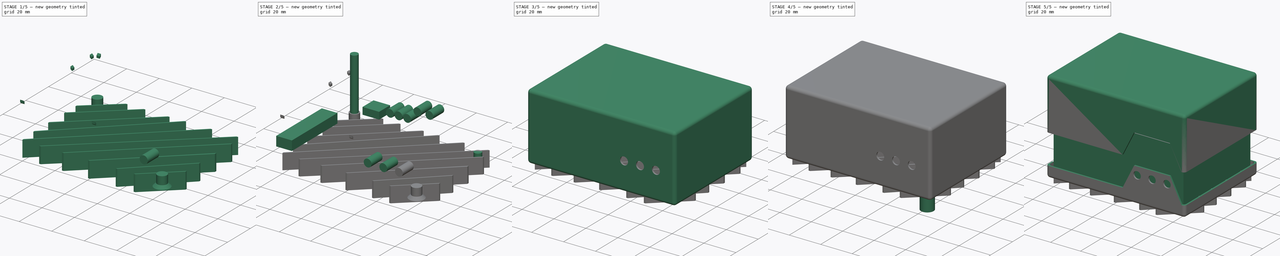
[diagram: build sequence overview — one tinted view per stage of 5, left to right]
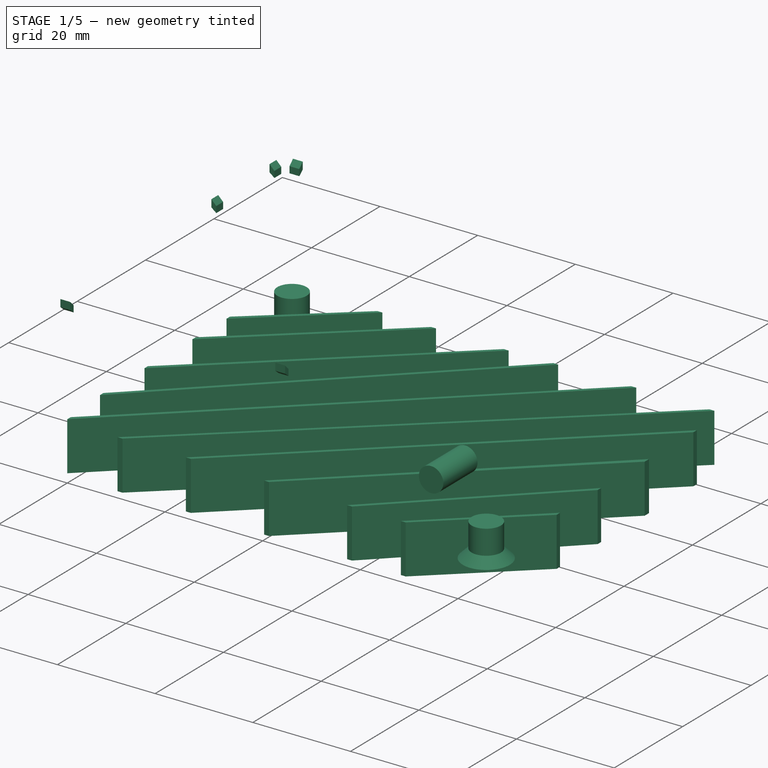
[diagram: stage 1 of 5 — iso view after this stage's code; geometry added in this stage tinted green]
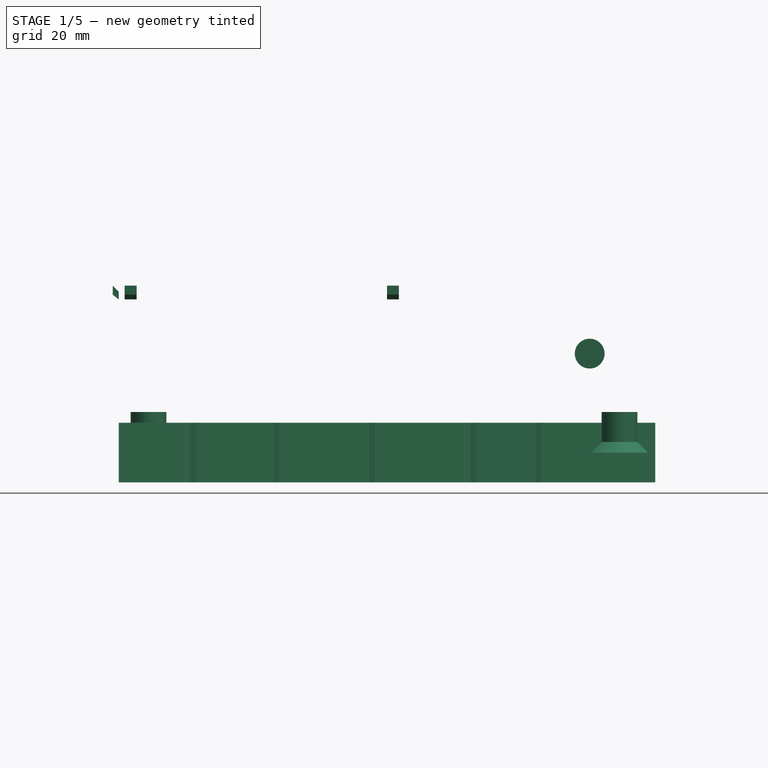
[diagram: stage 1 of 5 — front view after this stage's code; geometry added in this stage tinted green]
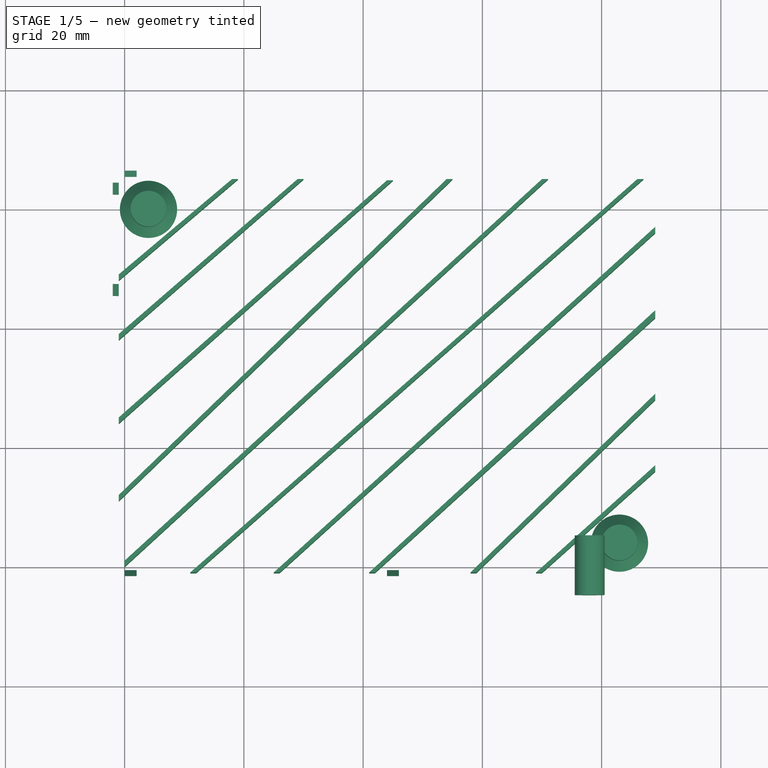
[diagram: stage 1 of 5 — top view after this stage's code; geometry added in this stage tinted green]
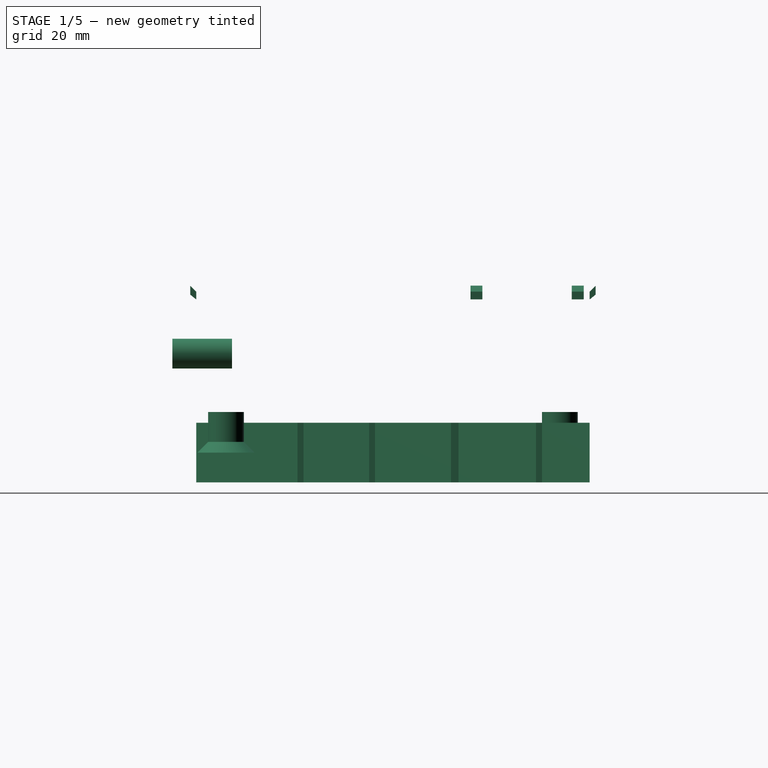
[diagram: stage 1 of 5 — right view after this stage's code; geometry added in this stage tinted green]
FCSTD DOCUMENT  (FreeCAD 0.14R3700 (Git))
Label: housing
License: CC-BY 3.0
LicenseURL: http://creativecommons.org/licenses/by/3.0/
objects: Part::Cylinder×20, Part::MultiFuse×11, Part::Cut×9, Part::Box×8, Part::FeaturePython×5, PartDesign::Fillet×4, Sketcher::SketchObject×4, PartDesign::Pad×4, Part::Cone×4, Part::MultiCommon×1
note: 74 computed .brp shape members not serialized (recipe doc carries the construction recipe); baked Part::Feature solids carry a one-line shape summary decoded from their .brp

FEATURE [Part::Cylinder] Cylinder011
  Angle = 360
  Height = 10
  Placement = pos=(78,5,16.6) rot=(1,0,0;1.5708rad)
  Radius = 2.5
FEATURE [Part::Cone] Cone002
  Angle = 360
  Height = 2.5
  Placement = pos=(4,60,0) rot=(0,0,1;0rad)
  Radius1 = 4.8
  Radius2 = 2.3
FEATURE [Part::Cone] Cone003
  Angle = 360
  Height = 2.5
  Placement = pos=(83,4,0) rot=(0,0,1;0rad)
  Radius1 = 4.8
  Radius2 = 2.3
FEATURE [Part::Cylinder] Cylinder018
  Angle = 360
  Height = 6.8
  Placement = pos=(4,60,0) rot=(0,0,1;0rad)
  Radius = 3
FEATURE [Part::Cylinder] Cylinder019
  Angle = 360
  Height = 6.8
  Placement = pos=(83,4,0) rot=(0,0,1;0rad)
  Radius = 3
FEATURE [Part::MultiFuse] Fusion010
  Shapes = -> [Cylinder018,Cylinder019]
FEATURE [Sketcher::SketchObject] Sketch002
  Placement = pos=(0,2,0) rot=(1,0,0;1.5708rad)
  sketch-geometry (4):
    g0: LineSegment StartX=-2 StartY=28 StartZ=0 EndX=-2 EndY=26.4916 EndZ=0
    g1: LineSegment StartX=-2 StartY=26.4916 StartZ=0 EndX=-1 EndY=25.687 EndZ=0
    g2: LineSegment StartX=-1 StartY=25.687 StartZ=0 EndX=-1 EndY=27 EndZ=0
    g3: LineSegment StartX=-1 StartY=27 StartZ=0 EndX=-2 EndY=28 EndZ=0
  constraints (4):
    c: Coincident(g0,g1)
    c: Coincident(g1,g2)
    c: Coincident(g2,g3)
    c: Coincident(g3,g0)
FEATURE [PartDesign::Pad] Pad002
  Length = 2
  Length2 = 100
  Placement = pos=(0,2,0) rot=(1,0,0;1.5708rad)
  Sketch = -> Sketch002
  Type = 0
FEATURE [Part::FeaturePython] Clone  label="Clone of Pad002"  # Draft clone (typed FeaturePython)
  Objects = -> [Pad002]
  Placement = pos=(0,47,0) rot=(1,0,0;1.5708rad)
  Scale = (1,1,1)
FEATURE [Part::FeaturePython] Clone001  label="Clone of Pad003"  # Draft clone (typed FeaturePython)
  Objects = -> [Pad002]
  Placement = pos=(0,64,0) rot=(1,0,0;1.5708rad)
  Scale = (1,1,1)
FEATURE [Part::FeaturePython] Clone002  label="Clone of Pad004"  # Draft clone (typed FeaturePython)
  Objects = -> [Pad002]
  Placement = pos=(0,0,0) rot=(0.57735,0.57735,0.57735;2.0944rad)
  Scale = (1,1,1)
FEATURE [Part::FeaturePython] Clone003  label="Clone of Pad005"  # Draft clone (typed FeaturePython)
  Objects = -> [Pad002]
  Placement = pos=(44,0,0) rot=(0.57735,0.57735,0.57735;2.0944rad)
  Scale = (1,1,1)
FEATURE [Part::FeaturePython] Clone004  label="Clone of Pad006"  # Draft clone (typed FeaturePython)
  Objects = -> [Pad002]
  Placement = pos=(2,64,0) rot=(0.57735,-0.57735,-0.57735;2.0944rad)
  Scale = (1,1,1)
FEATURE [Sketcher::SketchObject] Sketch003
  Placement = pos=(0,0,-5) rot=(0,0,1;0rad)
  sketch-geometry (40):
    g0: LineSegment StartX=-1 StartY=49 StartZ=0 EndX=18 EndY=65 EndZ=0
    g1: LineSegment StartX=18 StartY=65 StartZ=0 EndX=19 EndY=65 EndZ=0
    g2: LineSegment StartX=19 StartY=65 StartZ=0 EndX=-1 EndY=48 EndZ=0
    g3: LineSegment StartX=-1 StartY=48 StartZ=0 EndX=-1 EndY=49 EndZ=0
    g4: LineSegment StartX=-1 StartY=39 StartZ=0 EndX=29 EndY=65 EndZ=0
    g5: LineSegment StartX=29 StartY=65 StartZ=0 EndX=30 EndY=65 EndZ=0
    g6: LineSegment StartX=30 StartY=65 StartZ=0 EndX=-1 EndY=38 EndZ=0
    g7: LineSegment StartX=-1 StartY=38 StartZ=0 EndX=-1 EndY=39 EndZ=0
    g8: LineSegment StartX=44 StartY=64.7956 StartZ=0 EndX=-1 EndY=25 EndZ=0
    g9: LineSegment StartX=-1 StartY=25 StartZ=0 EndX=-1 EndY=24 EndZ=0
    g10: LineSegment StartX=-1 StartY=24 StartZ=0 EndX=45 EndY=64.7956 EndZ=0
    g11: LineSegment StartX=45 StartY=64.7956 StartZ=0 EndX=44 EndY=64.7956 EndZ=0
    g12: LineSegment StartX=54 StartY=65 StartZ=0 EndX=-1 EndY=12 EndZ=0
    g13: LineSegment StartX=-1 StartY=12 StartZ=0 EndX=-1 EndY=11 EndZ=0
    g14: LineSegment StartX=-1 StartY=11 StartZ=0 EndX=55 EndY=65 EndZ=0
    g15: LineSegment StartX=55 StartY=65 StartZ=0 EndX=54 EndY=65 EndZ=0
    g16: LineSegment StartX=70 StartY=65 StartZ=0 EndX=0 EndY=1 EndZ=0
    g17: LineSegment StartX=0 StartY=1 StartZ=0 EndX=0 EndY=0 EndZ=0
    g18: LineSegment StartX=0 StartY=0 StartZ=0 EndX=71 EndY=65 EndZ=0
    g19: LineSegment StartX=71 StartY=65 StartZ=0 EndX=70 EndY=65 EndZ=0
    g20: LineSegment StartX=12 StartY=-1 StartZ=0 EndX=11 EndY=-1 EndZ=0
    g21: LineSegment StartX=11 StartY=-1 StartZ=0 EndX=86 EndY=65 EndZ=0
    g22: LineSegment StartX=86 StartY=65 StartZ=0 EndX=87 EndY=65 EndZ=0
    g23: LineSegment StartX=87 StartY=65 StartZ=0 EndX=12 EndY=-1 EndZ=0
    g24: LineSegment StartX=25 StartY=-1 StartZ=0 EndX=89 EndY=57 EndZ=0
    g25: LineSegment StartX=89 StartY=57 StartZ=0 EndX=89 EndY=56 EndZ=0
    g26: LineSegment StartX=89 StartY=56 StartZ=0 EndX=26 EndY=-1 EndZ=0
    g27: LineSegment StartX=26 StartY=-1 StartZ=0 EndX=25 EndY=-1 EndZ=0
    g28: LineSegment StartX=41 StartY=-1 StartZ=0 EndX=89 EndY=43 EndZ=0
    g29: LineSegment StartX=89 StartY=43 StartZ=0 EndX=89 EndY=41.7464 EndZ=0
    g30: LineSegment StartX=89 StartY=41.7464 StartZ=0 EndX=42 EndY=-1 EndZ=0
    g31: LineSegment StartX=42 StartY=-1 StartZ=0 EndX=41 EndY=-1 EndZ=0
    g32: LineSegment StartX=58 StartY=-1 StartZ=0 EndX=59 EndY=-1 EndZ=0
    g33: LineSegment StartX=59 StartY=-1 StartZ=0 EndX=89 EndY=28 EndZ=0
    g34: LineSegment StartX=89 StartY=28 StartZ=0 EndX=89 EndY=29 EndZ=0
    g35: LineSegment StartX=89 StartY=29 StartZ=0 EndX=58 EndY=-1 EndZ=0
    g36: LineSegment StartX=69 StartY=-1 StartZ=0 EndX=70 EndY=-1 EndZ=0
    g37: LineSegment StartX=70 StartY=-1 StartZ=0 EndX=89 EndY=16 EndZ=0
    g38: LineSegment StartX=89 StartY=16 StartZ=0 EndX=89 EndY=17 EndZ=0
    g39: LineSegment StartX=89 StartY=17 StartZ=0 EndX=69 EndY=-1 EndZ=0
  constraints (40):
    c: Coincident(g0,g1)
    c: Coincident(g1,g2)
    c: Coincident(g2,g3)
    c: Coincident(g3,g0)
    c: Coincident(g4,g5)
    c: Coincident(g5,g6)
    c: Coincident(g6,g7)
    c: Coincident(g7,g4)
    c: Coincident(g8,g9)
    c: Coincident(g9,g10)
    c: Coincident(g10,g11)
    c: Coincident(g8,g11)
    c: Coincident(g12,g13)
    c: Coincident(g13,g14)
    c: Coincident(g14,g15)
    c: Coincident(g12,g15)
    c: Coincident(g16,g17)
    c: Coincident(g17,g18)
    c: Coincident(g18,g19)
    c: Coincident(g19,g16)
    c: Coincident(g20,g21)
    c: Coincident(g21,g22)
    c: Coincident(g22,g23)
    c: Coincident(g20,g23)
    c: Coincident(g24,g25)
    c: Coincident(g25,g26)
    c: Coincident(g26,g27)
    c: Coincident(g27,g24)
    c: Coincident(g28,g29)
    c: Coincident(g29,g30)
    c: Coincident(g30,g31)
    c: Coincident(g31,g28)
    c: Coincident(g32,g33)
    c: Coincident(g33,g34)
    c: Coincident(g34,g35)
    c: Coincident(g35,g32)
    c: Coincident(g36,g37)
    c: Coincident(g37,g38)
    c: Coincident(g38,g39)
    c: Coincident(g39,g36)
FEATURE [PartDesign::Pad] Pad003
  Length = 10
  Length2 = 100
  Placement = pos=(0,0,-5) rot=(0,0,1;0rad)
  Sketch = -> Sketch003
  Type = 0
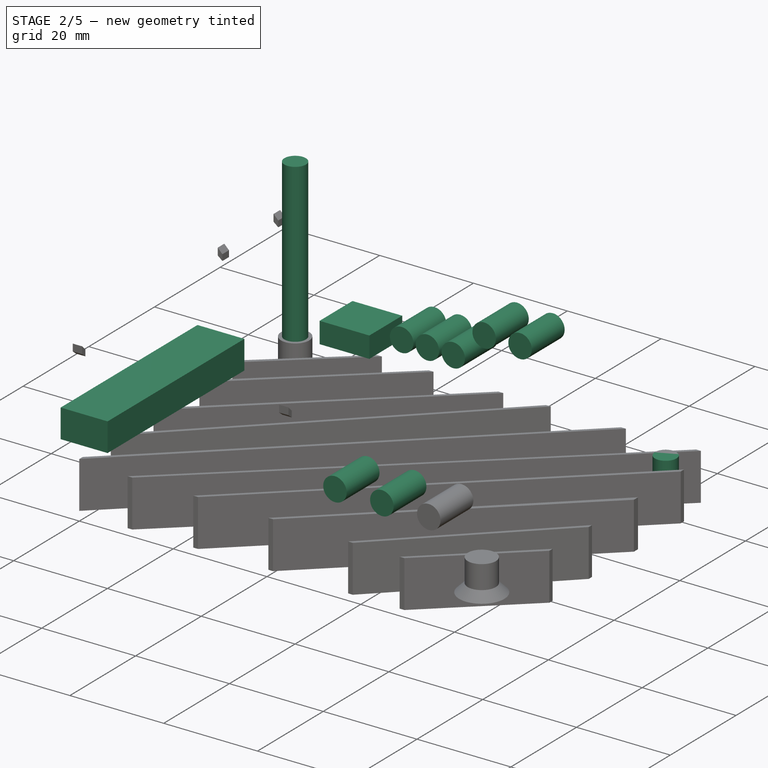
[diagram: stage 2 of 5 — iso view after this stage's code; geometry added in this stage tinted green]
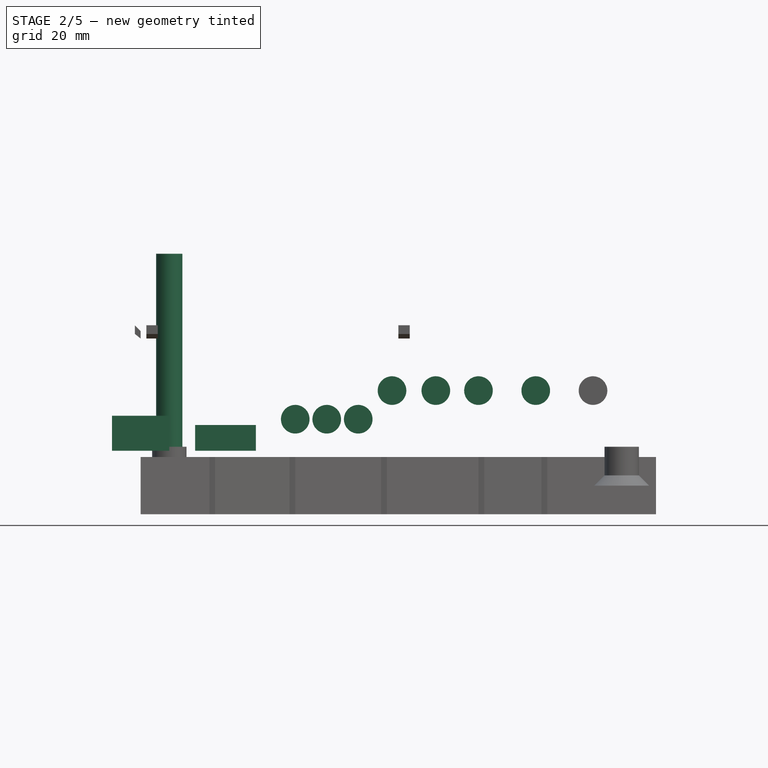
[diagram: stage 2 of 5 — front view after this stage's code; geometry added in this stage tinted green]
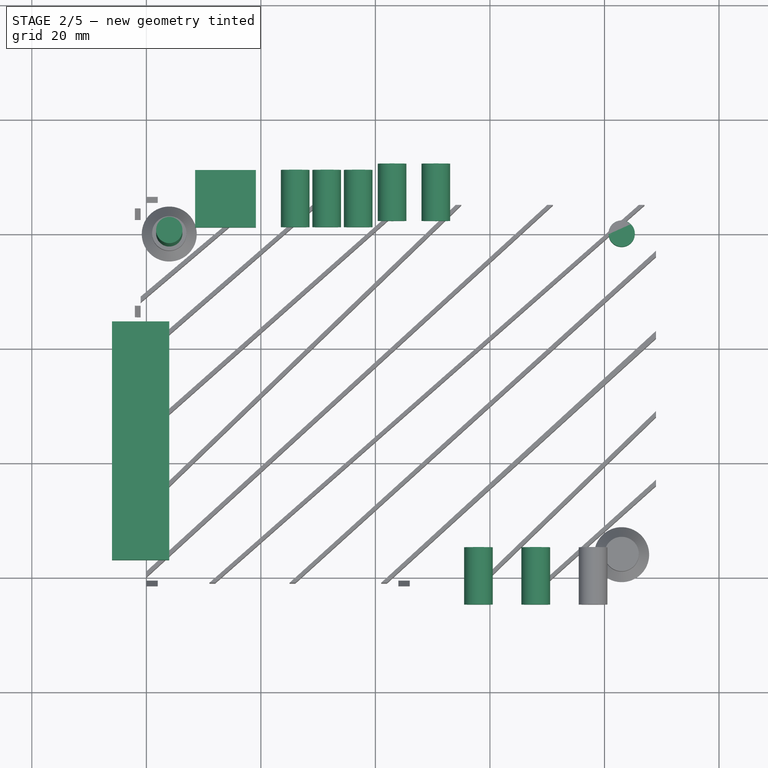
[diagram: stage 2 of 5 — top view after this stage's code; geometry added in this stage tinted green]
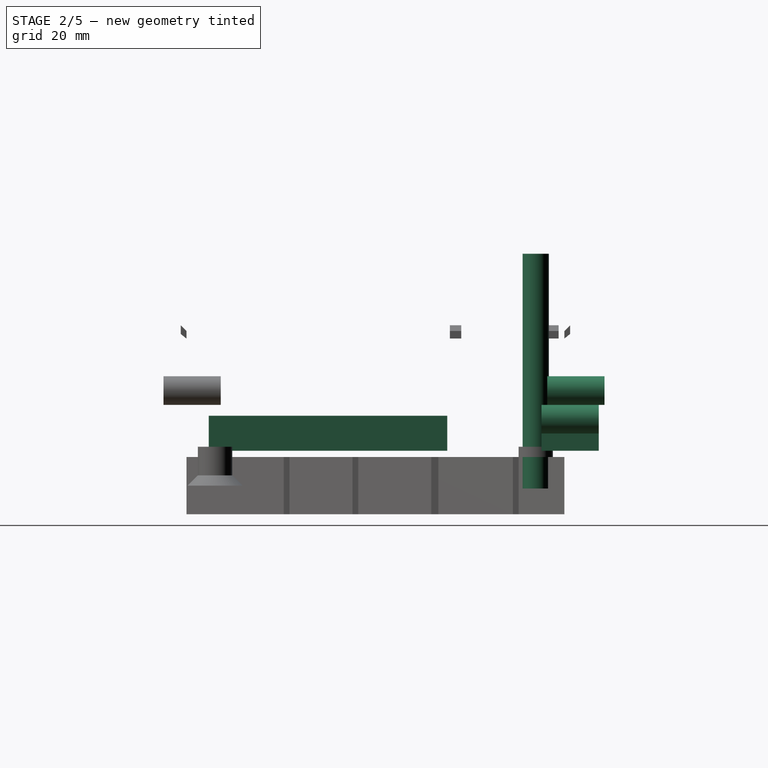
[diagram: stage 2 of 5 — right view after this stage's code; geometry added in this stage tinted green]
FEATURE [Part::Cylinder] Cylinder002
  Angle = 360
  Height = 5.5
  Placement = pos=(83,60,-0.5) rot=(0,0,1;0rad)
  Radius = 2.3
FEATURE [Part::Cylinder] Cylinder003
  Angle = 360
  Height = 41
  Placement = pos=(4,60,-0.5) rot=(0,0,1;0rad)
  Radius = 2.3
FEATURE [Part::Box] Box003  label="side-pin-array-cutout"
  Height = 6.1
  Length = 10
  Placement = pos=(-6,2.9,6.1) rot=(0,0,1;0rad)
  Width = 41.64
FEATURE [Part::Box] Box004  label="usb-cutout"
  Height = 4.5
  Length = 10.6
  Placement = pos=(8.52,61,6.1) rot=(0,0,1;0rad)
  Width = 10
FEATURE [Part::Cylinder] Cylinder004
  Angle = 360
  Height = 10
  Placement = pos=(26,71,11.6) rot=(1,0,0;1.5708rad)
  Radius = 2.5
FEATURE [Part::Cylinder] Cylinder005
  Angle = 360
  Height = 10
  Placement = pos=(31.5,71,11.6) rot=(1,0,0;1.5708rad)
  Radius = 2.5
FEATURE [Part::Cylinder] Cylinder006
  Angle = 360
  Height = 10
  Placement = pos=(37,71,11.6) rot=(1,0,0;1.5708rad)
  Radius = 2.5
FEATURE [Part::MultiFuse] Fusion001  label="leds-cutout"
  Shapes = -> [Cylinder004,Cylinder005,Cylinder006]
FEATURE [Part::Cylinder] Cylinder007
  Angle = 360
  Height = 10
  Placement = pos=(42.9,72,16.6) rot=(1,0,0;1.5708rad)
  Radius = 2.5
FEATURE [Part::Cylinder] Cylinder008
  Angle = 360
  Height = 10
  Placement = pos=(50.55,72,16.6) rot=(1,0,0;1.5708rad)
  Radius = 2.5
FEATURE [Part::Cylinder] Cylinder009
  Angle = 360
  Height = 10
  Placement = pos=(58,5,16.6) rot=(1,0,0;1.5708rad)
  Radius = 2.5
FEATURE [Part::Cylinder] Cylinder010
  Angle = 360
  Height = 10
  Placement = pos=(68,5,16.6) rot=(1,0,0;1.5708rad)
  Radius = 2.5
FEATURE [Part::MultiFuse] Fusion002
  Shapes = -> [Cylinder007,Cylinder011,Cylinder009,Cylinder010,Cylinder008]
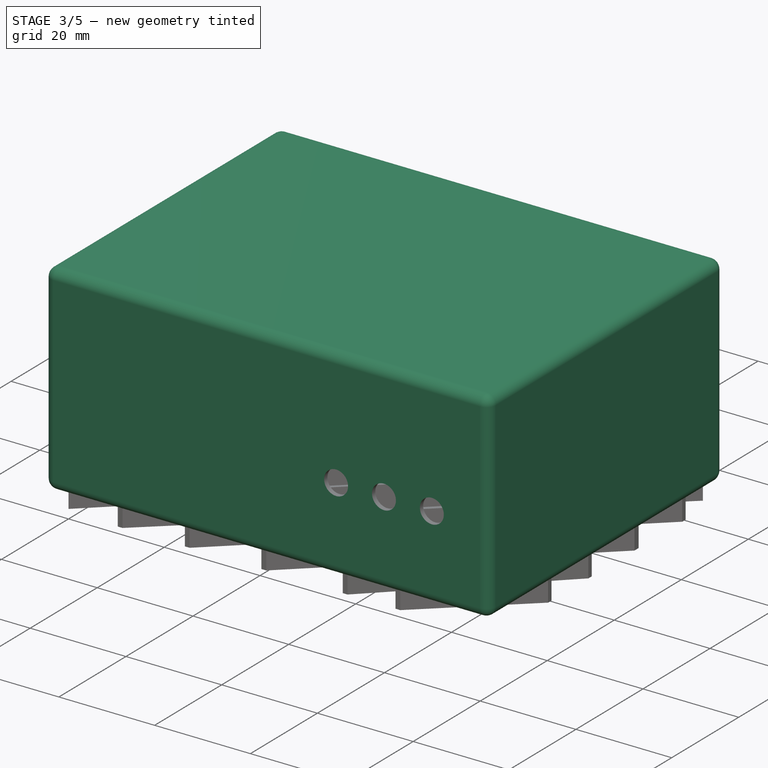
[diagram: stage 3 of 5 — iso view after this stage's code; geometry added in this stage tinted green]
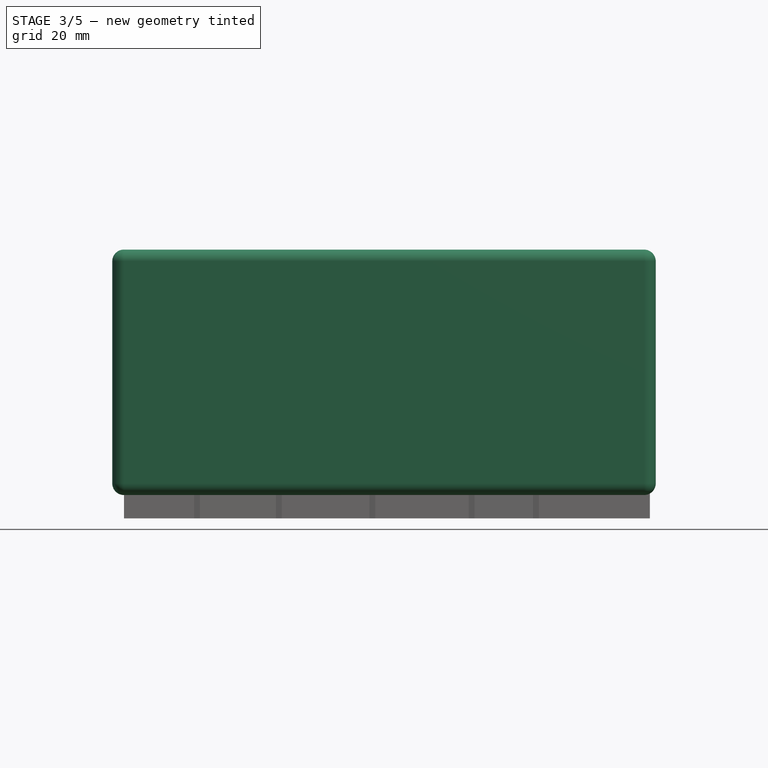
[diagram: stage 3 of 5 — front view after this stage's code; geometry added in this stage tinted green]
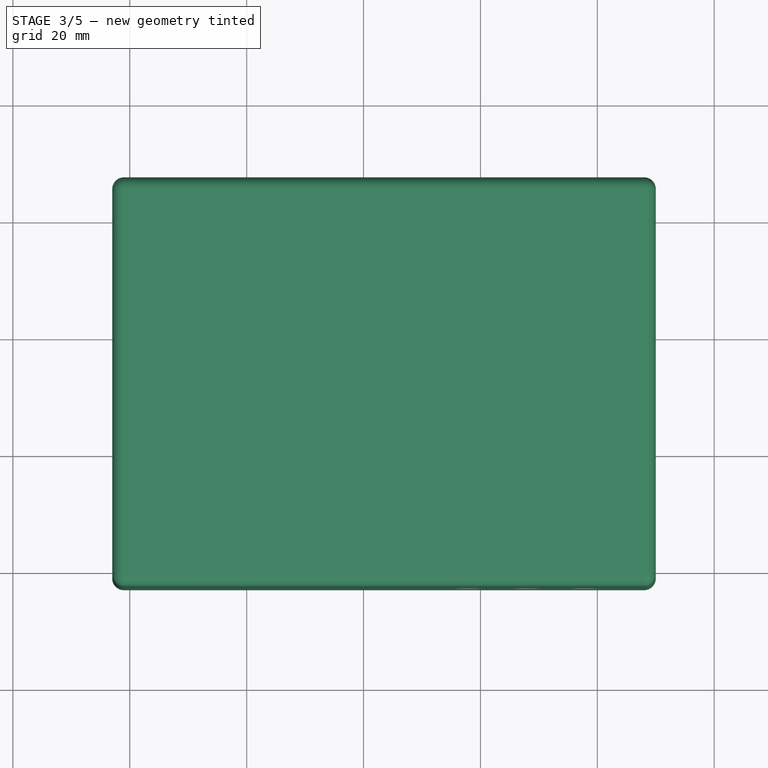
[diagram: stage 3 of 5 — top view after this stage's code; geometry added in this stage tinted green]
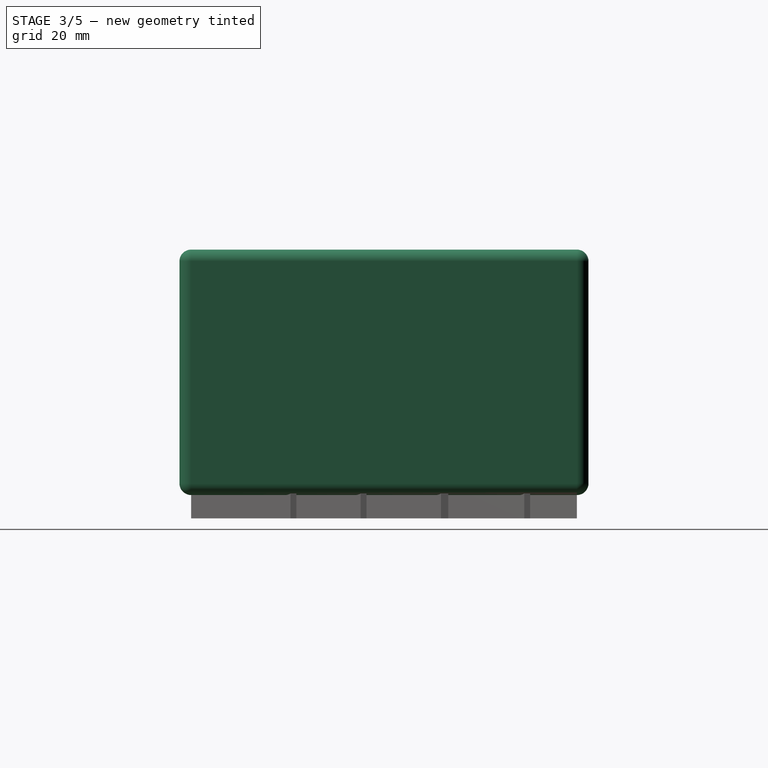
[diagram: stage 3 of 5 — right view after this stage's code; geometry added in this stage tinted green]
FEATURE [Part::Box] Box001  label="inner-box-cutout"
  Height = 40
  Length = 91
  Placement = pos=(-2,-2,0) rot=(0,0,1;0rad)
  Width = 68
FEATURE [PartDesign::Fillet] Fillet
  Base = -> Box001 [Edge5,Edge1,Edge7,Edge3]
  Placement = pos=(-2,-2,0) rot=(0,0,1;0rad)
  Radius = 2
FEATURE [PartDesign::Fillet] Fillet001  label="inner-cutout"
  Base = -> Fillet [Edge4,Edge12,Edge14,Edge16,Edge17,Edge18,Edge19,Edge20]
  Placement = pos=(-2,-2,0) rot=(0,0,1;0rad)
  Radius = 2
FEATURE [Part::Box] Box002  label="outer-housing"
  Height = 42
  Length = 93
  Placement = pos=(-3,-3,-1) rot=(0,0,1;0rad)
  Width = 70
FEATURE [PartDesign::Fillet] Fillet002  label="outer-shape"
  Base = -> Box002 [Edge9,Edge12,Edge6,Edge7,Edge8,Edge5,Edge10,Edge1,Edge2,Edge3,Edge4,Edge11]
  Placement = pos=(-3,-3,-1) rot=(0,0,1;0rad)
  Radius = 2
FEATURE [PartDesign::Fillet] Fillet003  label="inner-cutout001"
  Base = -> Fillet001 [Edge3,Edge6,Edge11,Edge12,Edge13,Edge14,Edge15,Edge16]
  Placement = pos=(-2,-2,0) rot=(0,0,1;0rad)
  Radius = 2
FEATURE [Part::Cut] Cut  label="walls"
  Base = -> Fillet002
  Tool = -> Fillet003
FEATURE [Part::Cylinder] Cylinder
  Angle = 360
  Height = 5.5
  Placement = pos=(4,4.5,-0.5) rot=(0,0,1;0rad)
  Radius = 2.3
FEATURE [Part::Cylinder] Cylinder001
  Angle = 360
  Height = 41
  Placement = pos=(83,4,-0.5) rot=(0,0,1;0rad)
  Radius = 2.3
FEATURE [Part::MultiFuse] Fusion  label="housing-one-piece"
  Shapes = -> [Cut,Cylinder,Cylinder002,Cylinder003,Cylinder001]
FEATURE [Part::Cut] Cut001  label="housing-with-side-hole"
  Base = -> Fusion
  Tool = -> Box003
FEATURE [Part::Cut] Cut002  label="case-with-usb-hole"
  Base = -> Cut001
  Tool = -> Box004
FEATURE [Part::Cut] Cut003  label="case-with-led-holes"
  Base = -> Cut002
  Tool = -> Fusion001
FEATURE [Part::Cut] Cut004  label="case-with-pin-term-holes"
  Base = -> Cut003
  Tool = -> Fusion002
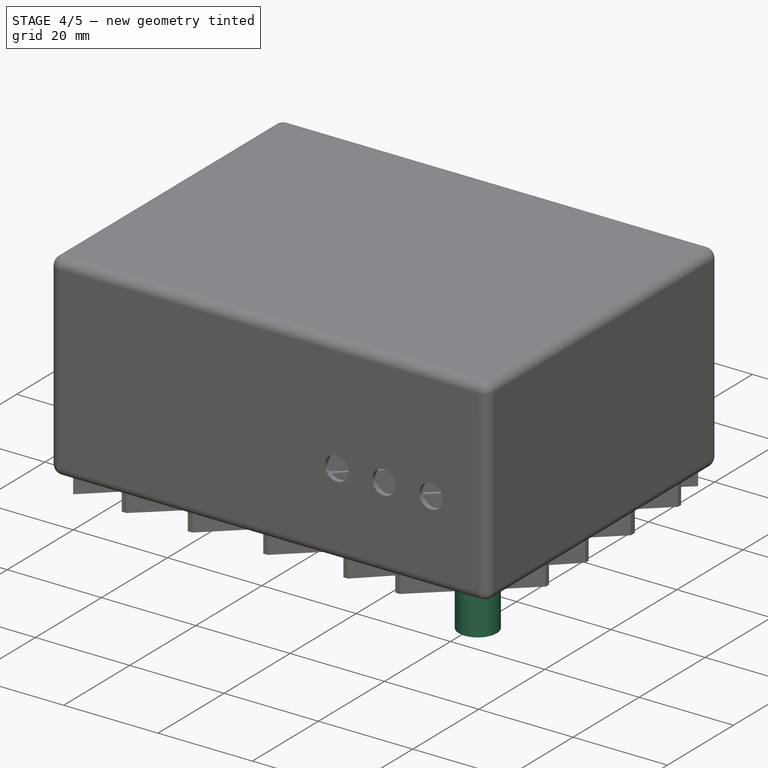
[diagram: stage 4 of 5 — iso view after this stage's code; geometry added in this stage tinted green]
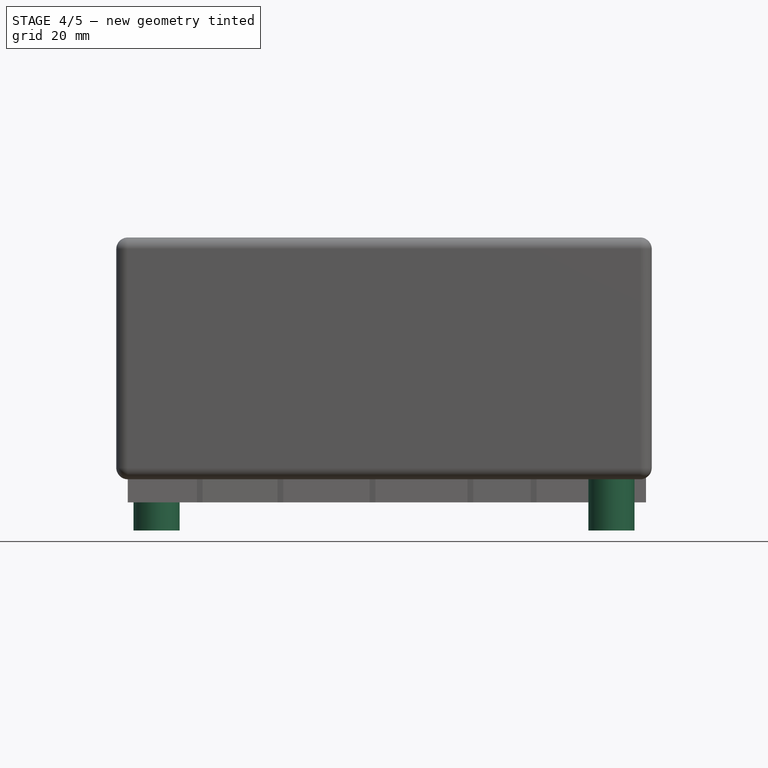
[diagram: stage 4 of 5 — front view after this stage's code; geometry added in this stage tinted green]
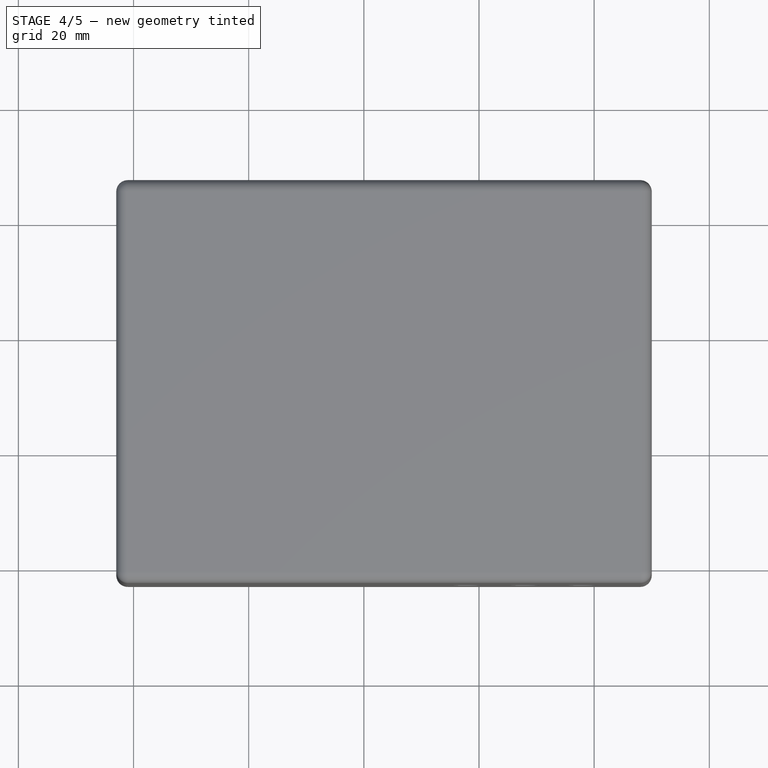
[diagram: stage 4 of 5 — top view after this stage's code; geometry added in this stage tinted green]
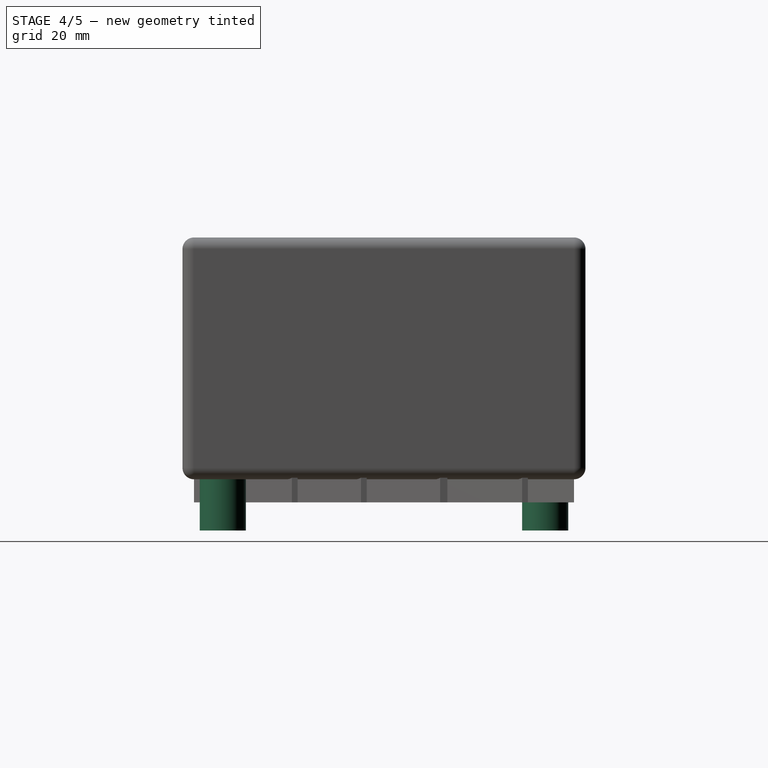
[diagram: stage 4 of 5 — right view after this stage's code; geometry added in this stage tinted green]
FEATURE [Part::Cylinder] Cylinder012
  Angle = 360
  Height = 5
  Placement = pos=(83,4,0) rot=(0,0,1;0rad)
  Radius = 1.75
FEATURE [Part::Cylinder] Cylinder013
  Angle = 360
  Height = 30
  Placement = pos=(83,4,0) rot=(0,0,1;0rad)
  Radius = 1.25
FEATURE [Part::Cone] Cone
  Angle = 360
  Height = 2
  Placement = pos=(83,4,0) rot=(0,0,1;0rad)
  Radius1 = 4
  Radius2 = 2
FEATURE [Part::MultiFuse] Fusion005
  Shapes = -> [Cylinder012,Cone,Cylinder013]
FEATURE [Part::Cylinder] Cylinder014
  Angle = 360
  Height = 30
  Placement = pos=(83,4,0) rot=(0,0,1;0rad)
  Radius = 1.25
FEATURE [Part::Cone] Cone001
  Angle = 360
  Height = 2
  Placement = pos=(83,4,0) rot=(0,0,1;0rad)
  Radius1 = 4
  Radius2 = 2
FEATURE [Part::Cylinder] Cylinder015
  Angle = 360
  Height = 5
  Placement = pos=(83,4,0) rot=(0,0,1;0rad)
  Radius = 1.75
FEATURE [Part::MultiFuse] Fusion006
  Placement = pos=(-79,56,0) rot=(0,0,1;0rad)
  Shapes = -> [Cylinder015,Cone001,Cylinder014]
FEATURE [Part::MultiFuse] Fusion007
  Shapes = -> [Fusion005,Fusion006]
FEATURE [Part::Cylinder] Cylinder016
  Angle = 360
  Height = 10
  Placement = pos=(4,60,-9.9) rot=(0,0,1;0rad)
  Radius = 4
FEATURE [Part::Cylinder] Cylinder017
  Angle = 360
  Height = 10
  Placement = pos=(83,4,-9.9) rot=(0,0,1;0rad)
  Radius = 4
FEATURE [Part::MultiFuse] Fusion008
  Shapes = -> [Fusion007,Cylinder016,Cylinder017]
FEATURE [Part::MultiFuse] Fusion009  label="fixed-full-case"
  Shapes = -> [Cut004,Cone002,Cone003]
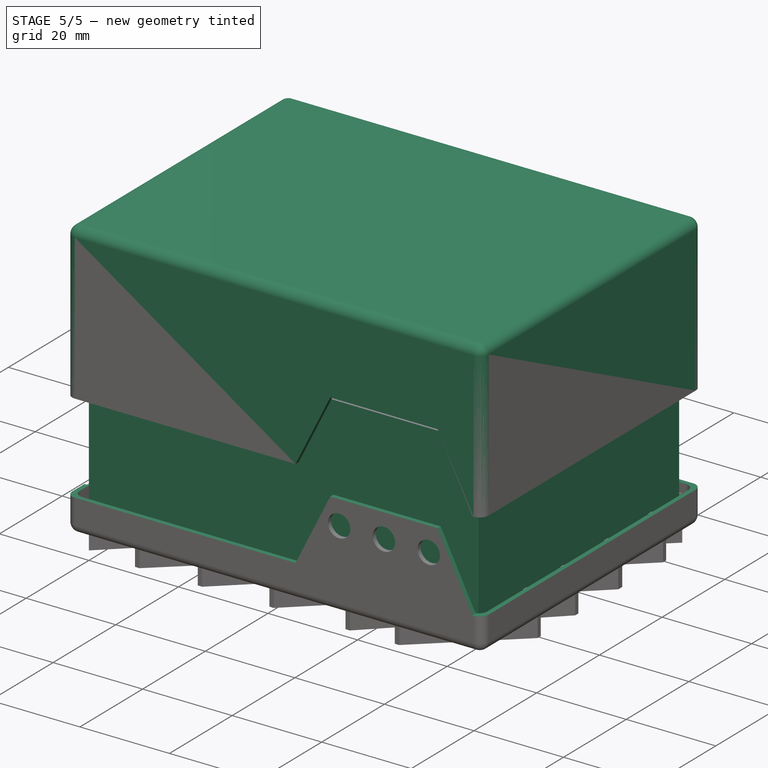
[diagram: stage 5 of 5 — iso view after this stage's code; geometry added in this stage tinted green]
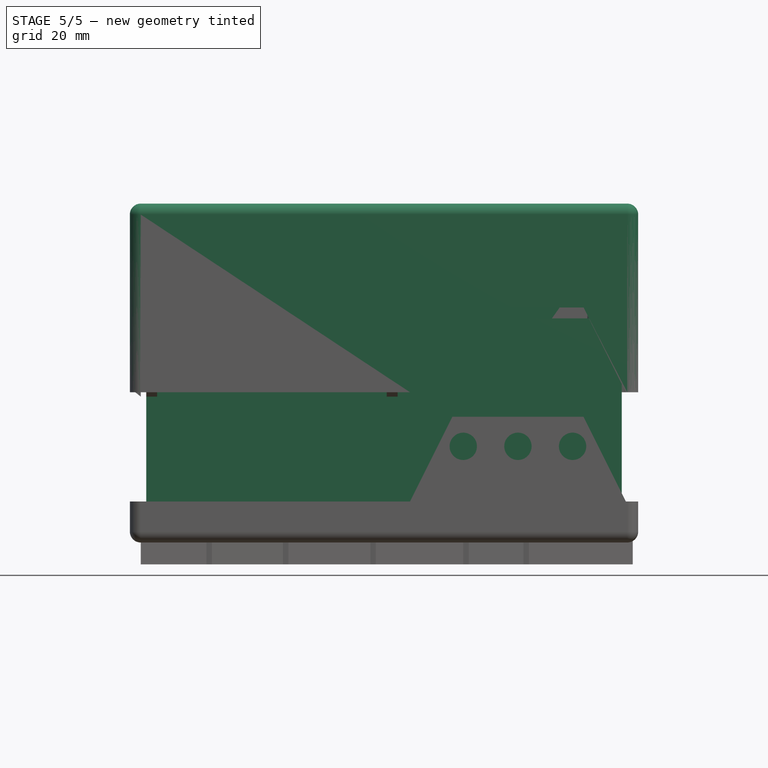
[diagram: stage 5 of 5 — front view after this stage's code; geometry added in this stage tinted green]
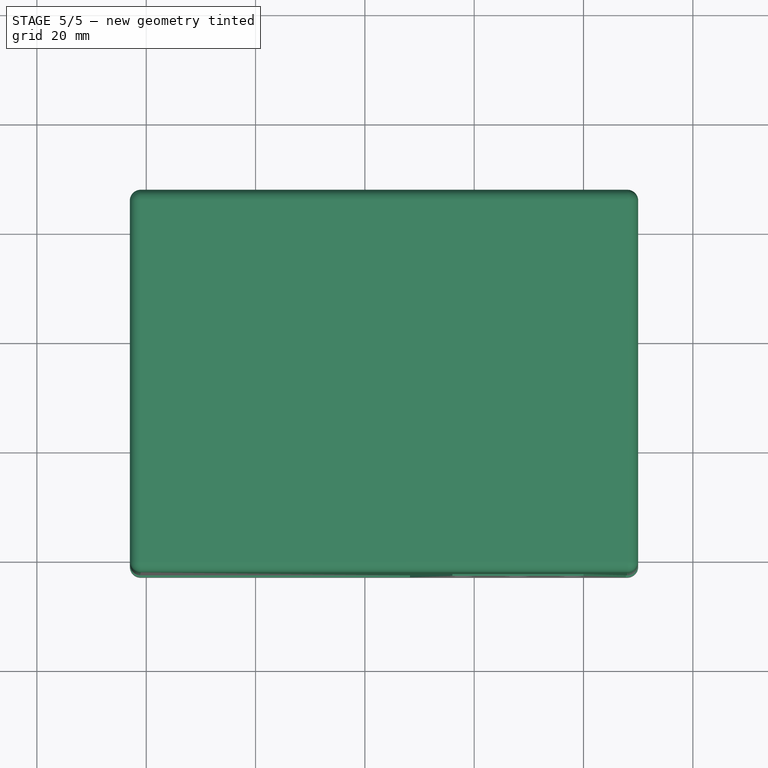
[diagram: stage 5 of 5 — top view after this stage's code; geometry added in this stage tinted green]
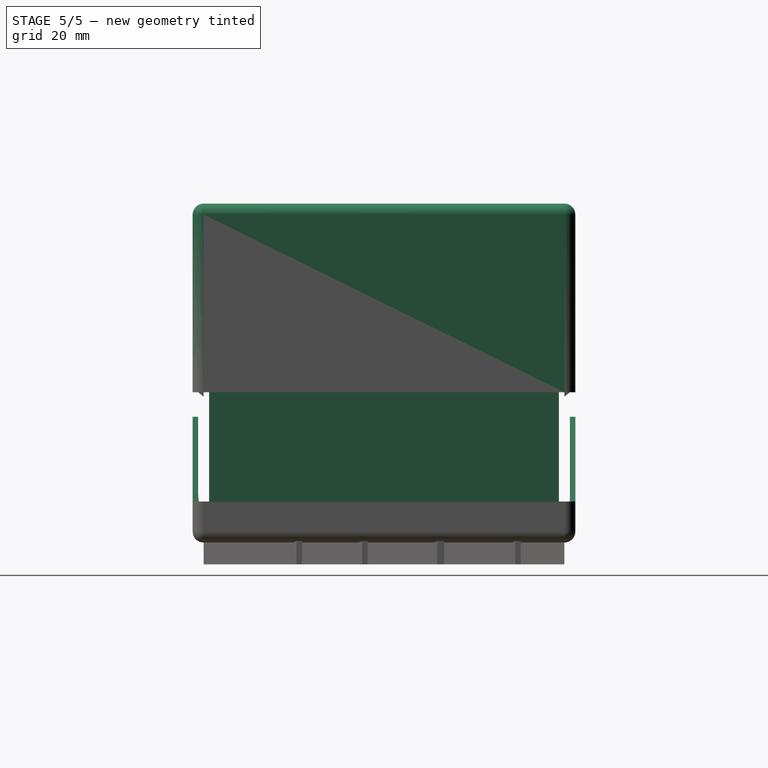
[diagram: stage 5 of 5 — right view after this stage's code; geometry added in this stage tinted green]
FEATURE [Part::Box] Box  label="board-dimensions"
  Height = 40
  Length = 87
  Width = 64
FEATURE [Part::Box] Box005
  Height = 7.5
  Length = 93
  Placement = pos=(-3,-3,-1) rot=(0,0,1;0rad)
  Width = 70
FEATURE [Sketcher::SketchObject] Sketch
  Placement = pos=(0,60,0) rot=(1,0,0;1.5708rad)
  sketch-geometry (8):
    g0: LineSegment StartX=18 StartY=0 StartZ=0 EndX=18 EndY=9 EndZ=0
    g1: LineSegment StartX=18 StartY=9 StartZ=0 EndX=23 EndY=17 EndZ=0
    g2: LineSegment StartX=23 StartY=17 StartZ=0 EndX=36 EndY=17 EndZ=0
    g3: LineSegment StartX=36 StartY=17 StartZ=0 EndX=41 EndY=22 EndZ=0
    g4: LineSegment StartX=41 StartY=22 StartZ=0 EndX=53 EndY=22 EndZ=0
    g5: LineSegment StartX=53 StartY=22 StartZ=0 EndX=65 EndY=6 EndZ=0
    g6: LineSegment StartX=65 StartY=6 StartZ=0 EndX=65 EndY=0 EndZ=0
    g7: LineSegment StartX=65 StartY=0 StartZ=0 EndX=18 EndY=0 EndZ=0
  constraints (24):
    c: PointOnObject(g0,g-1)
    c: Vertical(g0)
    c: Coincident(g0,g1)
    c: Coincident(g1,g2)
    c: Horizontal(g2)
    c: DistanceY(g0,g1) = 8
    c: DistanceY(g1,g0) = -17
    c: DistanceX(g-1,g0) = 18
    c: DistanceX(g0,g1) = 5
    c: Coincident(g2,g3)
    c: Coincident(g3,g4)
    c: Horizontal(g4)
    c: Coincident(g4,g5)
    c: Coincident(g5,g6)
    c: Vertical(g6)
    c: DistanceX(g1,g2) = 13
    c: DistanceY(g6,g4) = 22
    c: DistanceX(g2,g3) = 5
    c: DistanceX(g3,g4) = 12
    c: DistanceY(g5,g6) = -6
    c: Coincident(g6,g7)
    c: Coincident(g7,g0)
    c: Horizontal(g7)
    c: DistanceX(g4,g5) = 12
FEATURE [PartDesign::Pad] Pad
  Length = 30
  Length2 = 100
  Midplane = true
  Placement = pos=(0,60,0) rot=(1,0,0;1.5708rad)
  Sketch = -> Sketch
  Type = 0
FEATURE [Sketcher::SketchObject] Sketch001
  Placement = pos=(0,1,0) rot=(1,0,0;1.5708rad)
  sketch-geometry (4):
    g0: LineSegment StartX=48 StartY=6 StartZ=0 EndX=56 EndY=22 EndZ=0
    g1: LineSegment StartX=56 StartY=22 StartZ=0 EndX=80 EndY=22 EndZ=0
    g2: LineSegment StartX=80 StartY=22 StartZ=0 EndX=88 EndY=6 EndZ=0
    g3: LineSegment StartX=88 StartY=6 StartZ=0 EndX=48 EndY=6 EndZ=0
  constraints (12):
    c: Coincident(g0,g1)
    c: Horizontal(g1)
    c: Coincident(g1,g2)
    c: Coincident(g2,g3)
    c: Coincident(g3,g0)
    c: Horizontal(g3)
    c: DistanceX(g-1,g0) = 48
    c: DistanceX(g0,g0) = 8
    c: DistanceX(g2,g1) = -8
    c: DistanceX(g0,g1) = 24
    c: DistanceY(g0,g0) = 16
    c: DistanceY(g-1,g0) = 6
FEATURE [PartDesign::Pad] Pad001
  Length = 10
  Length2 = 100
  Placement = pos=(0,1,0) rot=(1,0,0;1.5708rad)
  Sketch = -> Sketch001
  Type = 0
FEATURE [Part::MultiFuse] Fusion003
  Shapes = -> [Box005,Pad,Pad001]
FEATURE [Part::Box] Box006
  Height = 10
  Length = 89
  Placement = pos=(-1,-1,0) rot=(0,0,1;0rad)
  Width = 66
FEATURE [Part::Box] Box007
  Height = 5
  Length = 89
  Placement = pos=(-1,-1,0) rot=(0,0,1;0rad)
  Width = 66
FEATURE [Part::Cut] Cut005
  Base = -> Fusion003
  Tool = -> Box006
FEATURE [Part::MultiFuse] Fusion004
  Shapes = -> [Cut005,Box007]
FEATURE [Part::Cut] Cut006  label="case-with-screw-holes"
  Base = -> Fusion009
  Tool = -> Fusion008
FEATURE [Part::MultiCommon] Common  label="case-lower-part"
  Shapes = -> [Cut006,Fusion004]
FEATURE [Part::Cut] Cut007  label="case-upper-part-almost"
  Base = -> Cut006
  Tool = -> Fusion004
FEATURE [Part::Cut] Cut008  label="case-upper-part"
  Base = -> Cut007
  Placement = pos=(0,0,20) rot=(0,0,1;0rad)
  Tool = -> Fusion010
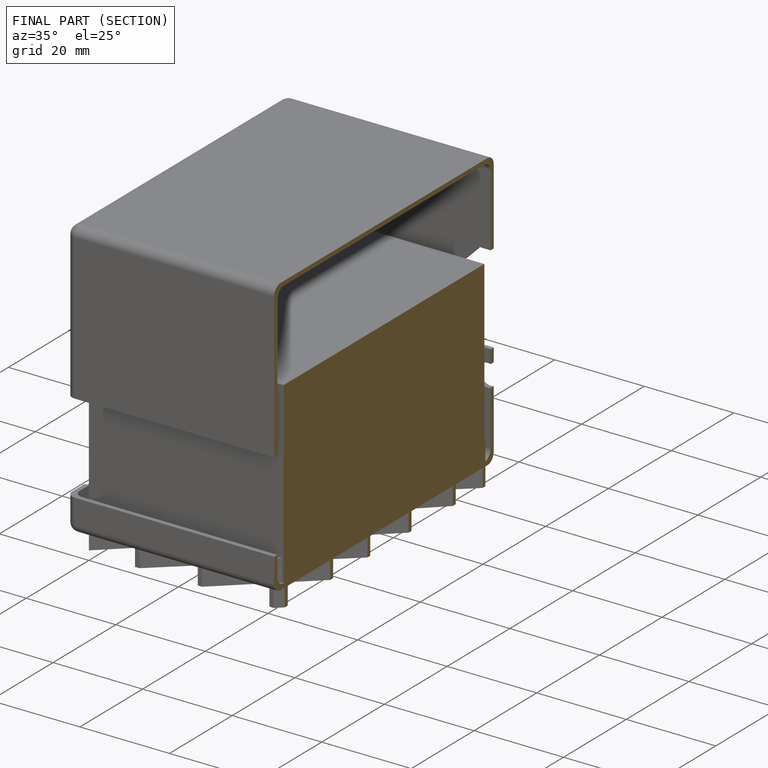
[diagram: finished part — half-section view (interior)]
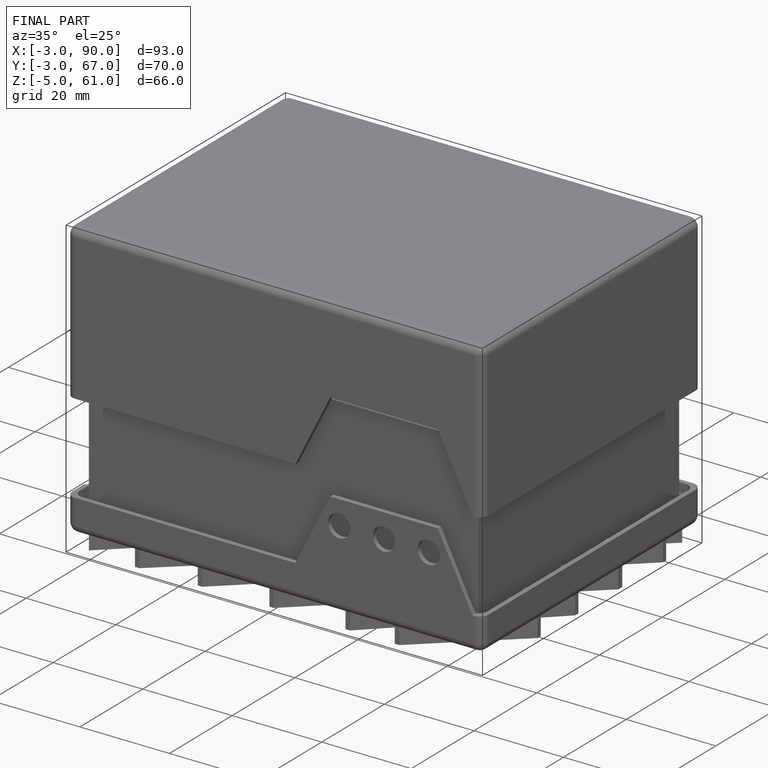
[diagram: finished part — iso view with bounding-box wireframe]
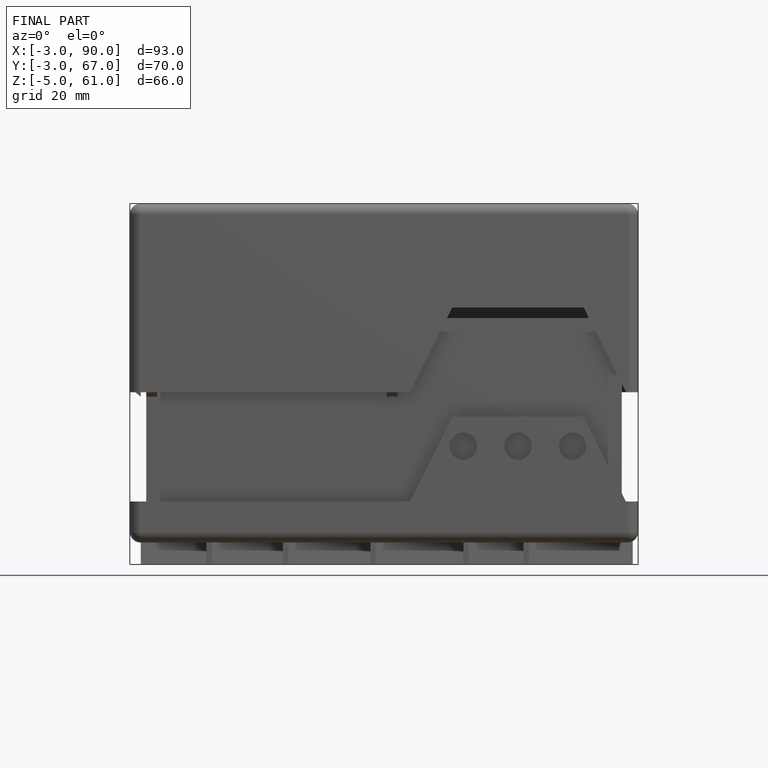
[diagram: finished part — front view with bounding-box wireframe]
